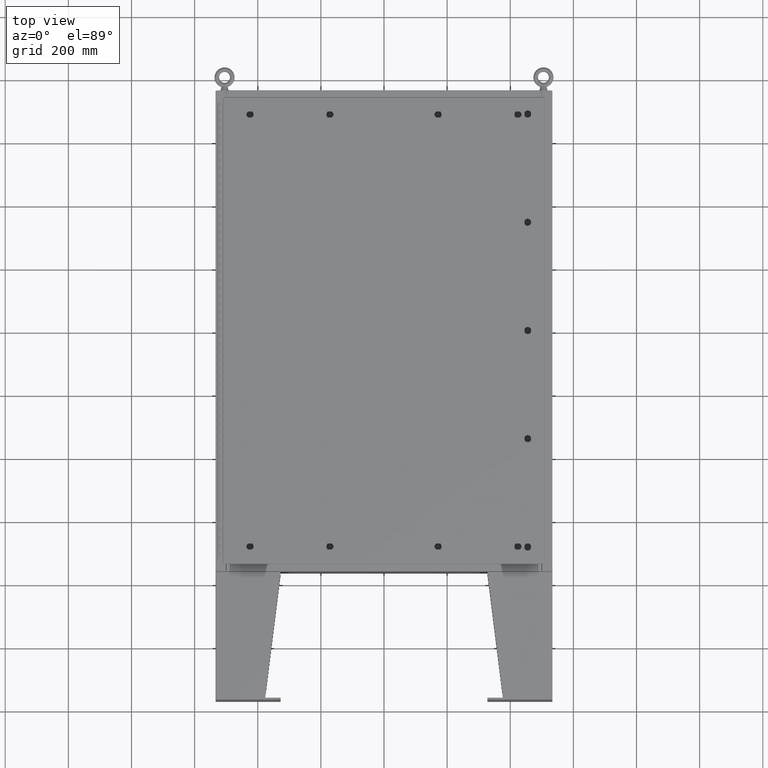
[diagram: clean part render]
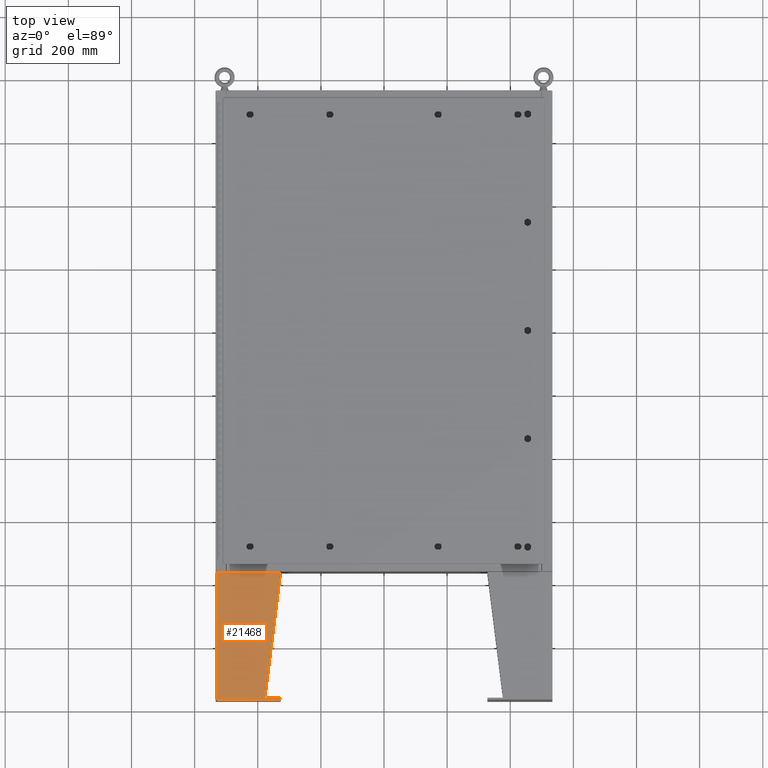
[diagram: same view with one face highlighted and labeled with its STEP entity id]
A machine part, top view. The second image highlights one B-rep face of the part: STEP entity #21468.
In plain terms, the highlighted planar face has unit normal (0, 0, -1).
Its self-contained STEP definition (entity closure, byte-faithful):
#2625 = AXIS2_PLACEMENT_3D ( 'NONE', #12327, #51654, #47942 ) ;
#2910 = VECTOR ( 'NONE', #48706, 39.37007874015748100 ) ;
#3657 = CARTESIAN_POINT ( 'NONE',  ( -8.000000000000012400, 7.857000000000001100, 8.000999999999997700 ) ) ;
#4246 = VERTEX_POINT ( 'NONE', #35572 ) ;
#4460 = VERTEX_POINT ( 'NONE', #63041 ) ;
#6893 = CARTESIAN_POINT ( 'NONE',  ( -8.000000000000026600, 8.000000000000001800, 8.000999999999997700 ) ) ;
#7762 = ORIENTED_EDGE ( 'NONE', *, *, #60208, .T. ) ;
#8525 = DIRECTION ( 'NONE',  ( 0.0000000000000000000, 0.0000000000000000000, -1.000000000000000000 ) ) ;
#11926 = LINE ( 'NONE', #3657, #36271 ) ;
#12327 = CARTESIAN_POINT ( 'NONE',  ( -8.000000000000026600, 8.000000000000001800, 8.000999999999997700 ) ) ;
#13791 = DIRECTION ( 'NONE',  ( 3.550958521948298200E-015, 0.0000000000000000000, -1.000000000000000000 ) ) ;
#15209 = EDGE_CURVE ( 'NONE', #4246, #35562, #44917, .T. ) ;
#17175 = CARTESIAN_POINT ( 'NONE',  ( -7.999999999999999100, 8.000000000000001800, 0.03899999999999923000 ) ) ;
#18323 = EDGE_CURVE ( 'NONE', #62614, #44404, #30582, .T. ) ;
#19148 = FACE_OUTER_BOUND ( 'NONE', #46355, .T. ) ;
#21468 = ADVANCED_FACE ( 'NONE', ( #19148 ), #48243, .F. ) ;
#22106 = DIRECTION ( 'NONE',  ( 0.0000000000000000000, 1.000000000000000000, 0.0000000000000000000 ) ) ;
#24200 = ORIENTED_EDGE ( 'NONE', *, *, #15209, .T. ) ;
#24690 = VECTOR ( 'NONE', #35989, 39.37007874015748100 ) ;
#27714 = LINE ( 'NONE', #6893, #24690 ) ;
#28665 = EDGE_CURVE ( 'NONE', #62614, #4460, #33148, .T. ) ;
#30582 = LINE ( 'NONE', #47783, #41989 ) ;
#31954 = VECTOR ( 'NONE', #13791, 39.37007874015748100 ) ;
#32724 = VERTEX_POINT ( 'NONE', #59979 ) ;
#33148 = LINE ( 'NONE', #17175, #44604 ) ;
#33871 = EDGE_CURVE ( 'NONE', #44404, #4246, #27714, .T. ) ;
#34010 = CARTESIAN_POINT ( 'NONE',  ( -8.000000000000019500, -7.749999999999999100, 6.052216497445926700 ) ) ;
#35086 = ORIENTED_EDGE ( 'NONE', *, *, #28665, .F. ) ;
#35562 = VERTEX_POINT ( 'NONE', #45762 ) ;
#35572 = CARTESIAN_POINT ( 'NONE',  ( -8.000000000000026600, -7.750000000000000000, 8.001000000000006600 ) ) ;
#35989 = DIRECTION ( 'NONE',  ( 0.0000000000000000000, 1.000000000000000000, 0.0000000000000000000 ) ) ;
#36271 = VECTOR ( 'NONE', #8525, 39.37007874015748100 ) ;
#40103 = LINE ( 'NONE', #34010, #2910 ) ;
#41820 = EDGE_CURVE ( 'NONE', #32724, #4460, #11926, .T. ) ;
#41989 = VECTOR ( 'NONE', #52925, 39.37007874015748100 ) ;
#42449 = CARTESIAN_POINT ( 'NONE',  ( -7.999999999999999100, -7.999999999999999100, 0.03899999999999813300 ) ) ;
#44404 = VERTEX_POINT ( 'NONE', #46943 ) ;
#44604 = VECTOR ( 'NONE', #22106, 39.37007874015748100 ) ;
#44830 = ORIENTED_EDGE ( 'NONE', *, *, #18323, .T. ) ;
#44917 = LINE ( 'NONE', #57982, #31954 ) ;
#45762 = CARTESIAN_POINT ( 'NONE',  ( -8.000000000000019500, -7.750000000000000000, 6.052216497445926700 ) ) ;
#46330 = ORIENTED_EDGE ( 'NONE', *, *, #41820, .T. ) ;
#46355 = EDGE_LOOP ( 'NONE', ( #24200, #7762, #46330, #35086, #44830, #57642 ) ) ;
#46943 = CARTESIAN_POINT ( 'NONE',  ( -8.000000000000026600, -7.999999999999999100, 8.000999999999997700 ) ) ;
#47783 = CARTESIAN_POINT ( 'NONE',  ( -8.000000000000026600, -7.999999999999999100, 8.000999999999997700 ) ) ;
#47942 = DIRECTION ( 'NONE',  ( 3.550958521948298200E-015, 0.0000000000000000000, -1.000000000000000000 ) ) ;
#48243 = PLANE ( 'NONE',  #2625 ) ;
#48706 = DIRECTION ( 'NONE',  ( -4.399772607369800400E-016, 0.9922942345449394800, 0.1239038017531047900 ) ) ;
#51654 = DIRECTION ( 'NONE',  ( 1.000000000000000000, 0.0000000000000000000, 3.550958521948298200E-015 ) ) ;
#52925 = DIRECTION ( 'NONE',  ( -3.550958521948298200E-015, 0.0000000000000000000, 1.000000000000000000 ) ) ;
#57642 = ORIENTED_EDGE ( 'NONE', *, *, #33871, .T. ) ;
#57982 = CARTESIAN_POINT ( 'NONE',  ( -8.000000000000026600, -7.750000000000000000, 8.000999999999997700 ) ) ;
#59979 = CARTESIAN_POINT ( 'NONE',  ( -8.000000000000026600, 7.857000000000001100, 8.000999999999997700 ) ) ;
#60208 = EDGE_CURVE ( 'NONE', #35562, #32724, #40103, .T. ) ;
#62614 = VERTEX_POINT ( 'NONE', #42449 ) ;
#63041 = CARTESIAN_POINT ( 'NONE',  ( -8.000000000000012400, 7.857000000000001100, 0.03900000000000469100 ) ) ;